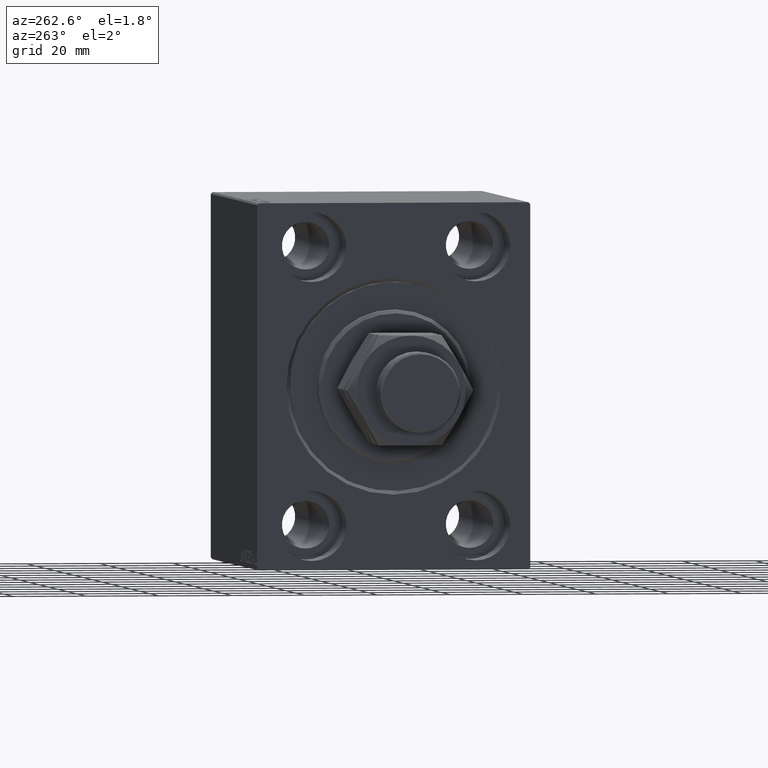
[diagram: clean part render]
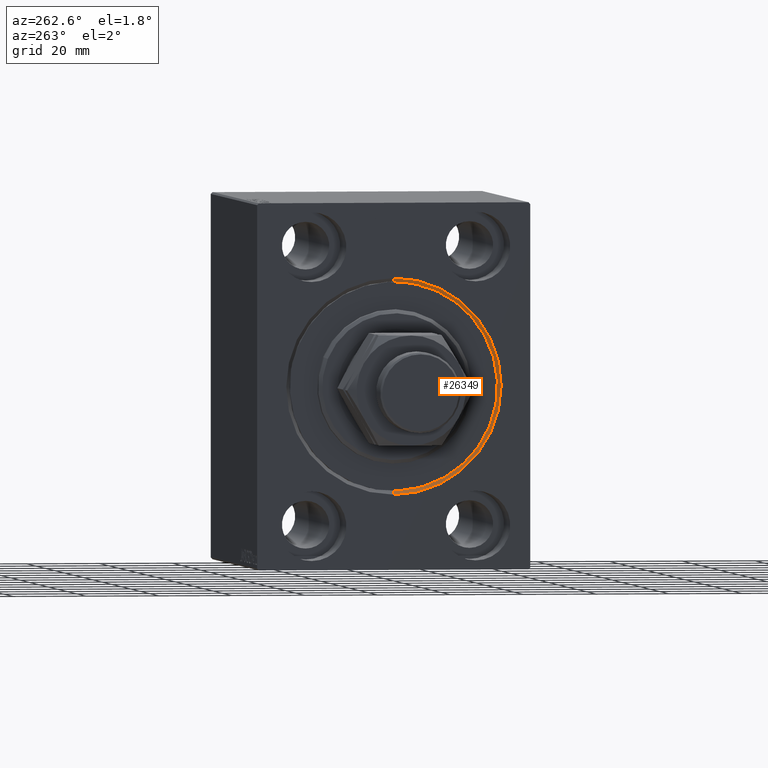
[diagram: same view with one face highlighted and labeled with its STEP entity id]
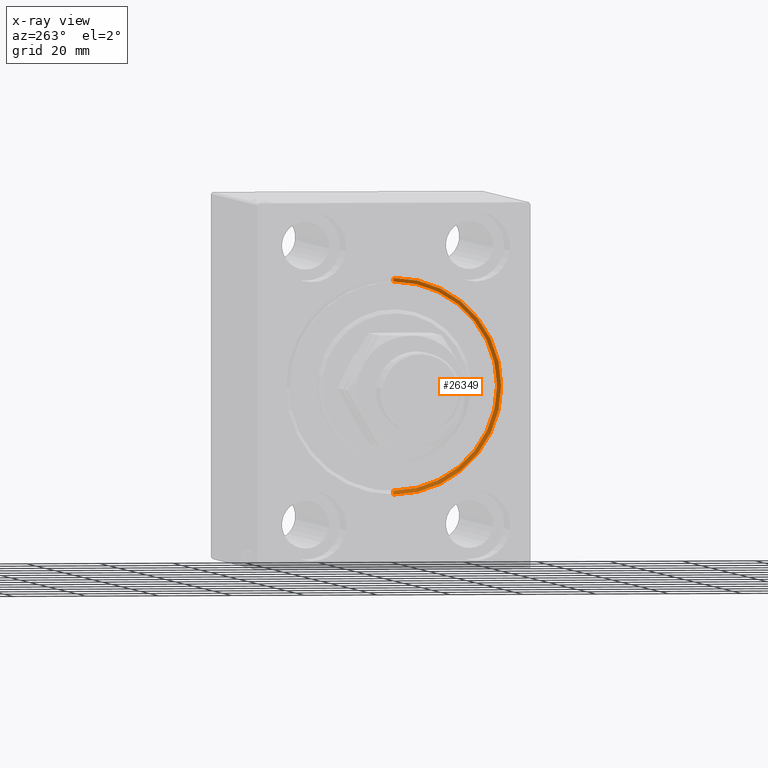
[diagram: x-ray of the same camera — body ghosted, the highlighted face saturated]
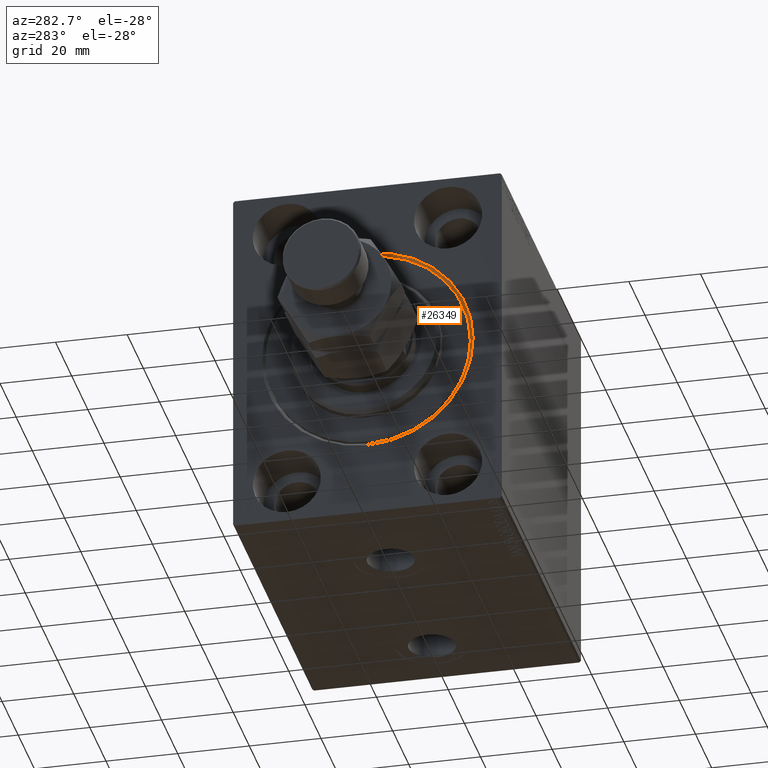
[diagram: same view with one face highlighted and labeled with its STEP entity id]
A machine part, auxiliary view. The second image highlights one B-rep face of the part: STEP entity #26349.
The next image is the same camera in x-ray: the body ghosted, the highlighted face saturated — about 0% of this face is hidden behind the body in this view.
A second angle (auxiliary view) of the same face is appended — the face is thin or edge-on in the first view.
In plain terms, the highlighted conical surface has half-angle 45 deg.
Its self-contained STEP definition (entity closure, byte-faithful):
#1309 = DIRECTION ( 'NONE',  ( -0.7071067811865487940, 8.659560562354919300E-17, -0.7071067811865463515 ) ) ;
#3054 = EDGE_CURVE ( 'NONE', #9425, #25521, #12395, .T. ) ;
#3295 = DIRECTION ( 'NONE',  ( -1.000000000000000000, 0.000000000000000000, 0.000000000000000000 ) ) ;
#4725 = EDGE_LOOP ( 'NONE', ( #22525, #41939, #31863, #40879 ) ) ;
#4763 = CARTESIAN_POINT ( 'NONE',  ( 1.000000000000018208, 3.490243377569956456E-15, -28.50000000000000000 ) ) ;
#5898 = AXIS2_PLACEMENT_3D ( 'NONE', #37828, #20220, #44755 ) ;
#6545 = CARTESIAN_POINT ( 'NONE',  ( 1.000000000000018208, 0.000000000000000000, 0.000000000000000000 ) ) ;
#8041 = VECTOR ( 'NONE', #19406, 1000.000000000000000 ) ;
#8308 = CARTESIAN_POINT ( 'NONE',  ( 1.000000000000018208, 0.000000000000000000, 28.50000000000000000 ) ) ;
#9425 = VERTEX_POINT ( 'NONE', #9693 ) ;
#9693 = CARTESIAN_POINT ( 'NONE',  ( 1.000000000000018208, 3.490243377569956456E-15, -28.50000000000000000 ) ) ;
#12395 = LINE ( 'NONE', #4763, #12827 ) ;
#12827 = VECTOR ( 'NONE', #1309, 1000.000000000000000 ) ;
#13937 = DIRECTION ( 'NONE',  ( 0.000000000000000000, 0.000000000000000000, 1.000000000000000000 ) ) ;
#14468 = CARTESIAN_POINT ( 'NONE',  ( 0.000000000000000000, 0.000000000000000000, 29.50000000000001421 ) ) ;
#14750 = DIRECTION ( 'NONE',  ( 1.000000000000000000, 0.000000000000000000, 0.000000000000000000 ) ) ;
#16431 = VERTEX_POINT ( 'NONE', #17205 ) ;
#16965 = CONICAL_SURFACE ( 'NONE', #36930, 28.50000000000000000, 0.7853981633974466137 ) ;
#17205 = CARTESIAN_POINT ( 'NONE',  ( 1.000000000000018208, 0.000000000000000000, 28.50000000000000000 ) ) ;
#18432 = CIRCLE ( 'NONE', #5898, 28.50000000000000000 ) ;
#18715 = LINE ( 'NONE', #8308, #8041 ) ;
#19406 = DIRECTION ( 'NONE',  ( -0.7071067811865487940, 0.000000000000000000, 0.7071067811865463515 ) ) ;
#20123 = CARTESIAN_POINT ( 'NONE',  ( 0.000000000000000000, 3.612708057484693970E-15, -29.50000000000001421 ) ) ;
#20220 = DIRECTION ( 'NONE',  ( -1.000000000000000000, 0.000000000000000000, 0.000000000000000000 ) ) ;
#20806 = DIRECTION ( 'NONE',  ( 0.000000000000000000, 0.000000000000000000, -1.000000000000000000 ) ) ;
#22525 = ORIENTED_EDGE ( 'NONE', *, *, #27930, .F. ) ;
#23561 = AXIS2_PLACEMENT_3D ( 'NONE', #28209, #14750, #20806 ) ;
#25521 = VERTEX_POINT ( 'NONE', #20123 ) ;
#26349 = ADVANCED_FACE ( 'NONE', ( #34563 ), #16965, .F. ) ;
#27930 = EDGE_CURVE ( 'NONE', #9425, #16431, #18432, .T. ) ;
#28209 = CARTESIAN_POINT ( 'NONE',  ( 0.000000000000000000, 0.000000000000000000, 0.000000000000000000 ) ) ;
#28943 = VERTEX_POINT ( 'NONE', #14468 ) ;
#31863 = ORIENTED_EDGE ( 'NONE', *, *, #42260, .F. ) ;
#34563 = FACE_OUTER_BOUND ( 'NONE', #4725, .T. ) ;
#35409 = CIRCLE ( 'NONE', #23561, 29.50000000000001421 ) ;
#36930 = AXIS2_PLACEMENT_3D ( 'NONE', #6545, #3295, #13937 ) ;
#37828 = CARTESIAN_POINT ( 'NONE',  ( 1.000000000000018208, 0.000000000000000000, 0.000000000000000000 ) ) ;
#38449 = EDGE_CURVE ( 'NONE', #16431, #28943, #18715, .T. ) ;
#40879 = ORIENTED_EDGE ( 'NONE', *, *, #38449, .F. ) ;
#41939 = ORIENTED_EDGE ( 'NONE', *, *, #3054, .T. ) ;
#42260 = EDGE_CURVE ( 'NONE', #28943, #25521, #35409, .T. ) ;
#44755 = DIRECTION ( 'NONE',  ( 0.000000000000000000, 0.000000000000000000, -1.000000000000000000 ) ) ;